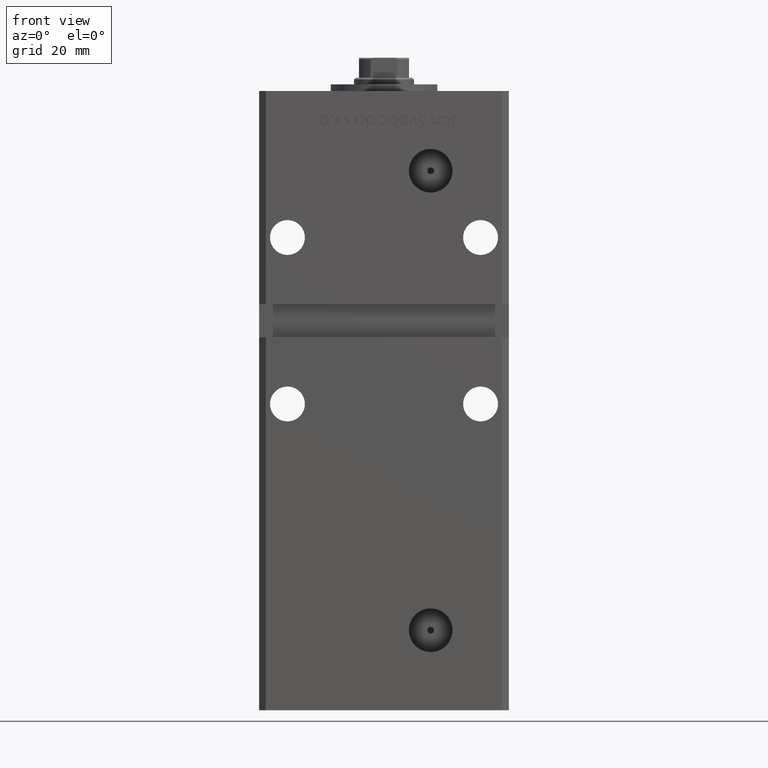
[diagram: clean part render]
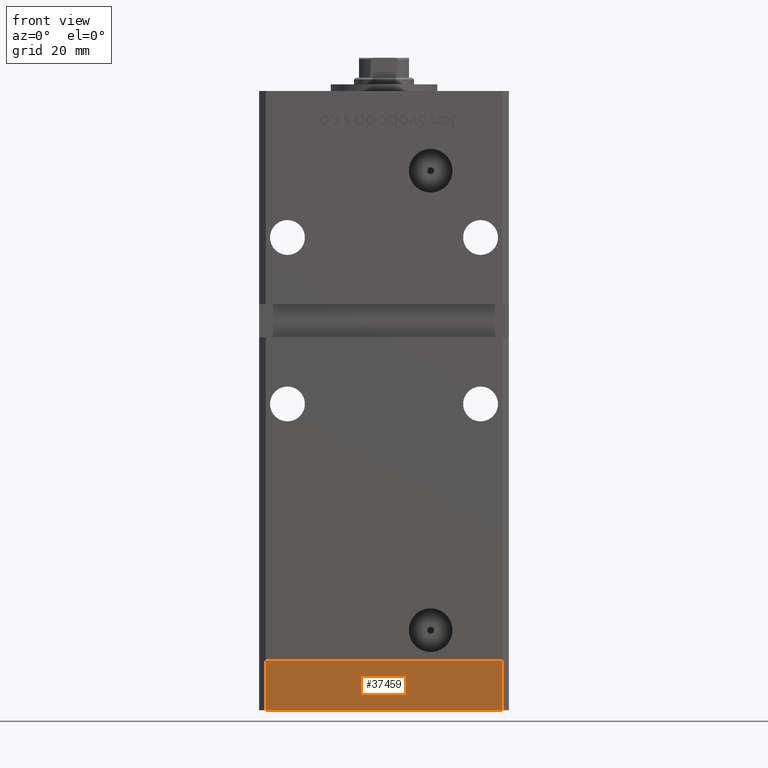
[diagram: same view with one face highlighted and labeled with its STEP entity id]
A machine part, front view. The second image highlights one B-rep face of the part: STEP entity #37459.
In plain terms, the highlighted planar face has unit normal (0, -1, -0).
Its self-contained STEP definition (entity closure, byte-faithful):
#916 = LINE ( 'NONE', #9269, #49912 ) ;
#2996 = EDGE_CURVE ( 'NONE', #18001, #48253, #11283, .T. ) ;
#3023 = CARTESIAN_POINT ( 'NONE',  ( 35.50000000000000711, -32.50000000000000711, 0.000000000000000000 ) ) ;
#4122 = VERTEX_POINT ( 'NONE', #3023 ) ;
#4278 = DIRECTION ( 'NONE',  ( 1.000000000000000000, 9.773090005503140331E-17, 0.000000000000000000 ) ) ;
#6454 = DIRECTION ( 'NONE',  ( 0.000000000000000000, 0.000000000000000000, 1.000000000000000000 ) ) ;
#6476 = EDGE_CURVE ( 'NONE', #48253, #4122, #23952, .T. ) ;
#6502 = PLANE ( 'NONE',  #48820 ) ;
#6762 = DIRECTION ( 'NONE',  ( 1.000000000000000000, 9.773090005503140331E-17, 0.000000000000000000 ) ) ;
#6815 = CARTESIAN_POINT ( 'NONE',  ( 35.50000000000000711, -32.50000000000000711, -15.00000000000000000 ) ) ;
#7544 = FACE_OUTER_BOUND ( 'NONE', #37318, .T. ) ;
#9269 = CARTESIAN_POINT ( 'NONE',  ( -35.49999999999998579, -32.50000000000001421, -15.00000000000000000 ) ) ;
#9792 = DIRECTION ( 'NONE',  ( 0.000000000000000000, 0.000000000000000000, 1.000000000000000000 ) ) ;
#9816 = VERTEX_POINT ( 'NONE', #6815 ) ;
#10218 = VECTOR ( 'NONE', #6454, 1000.000000000000000 ) ;
#10485 = EDGE_CURVE ( 'NONE', #18001, #9816, #916, .T. ) ;
#11283 = LINE ( 'NONE', #19379, #10218 ) ;
#13833 = CARTESIAN_POINT ( 'NONE',  ( 35.50000000000000711, -32.50000000000000711, -15.00000000000000000 ) ) ;
#14261 = EDGE_CURVE ( 'NONE', #9816, #4122, #50643, .T. ) ;
#15280 = CARTESIAN_POINT ( 'NONE',  ( -35.49999999999998579, -32.50000000000001421, -15.00000000000000000 ) ) ;
#16950 = CARTESIAN_POINT ( 'NONE',  ( -35.49999999999998579, -32.50000000000001421, 0.000000000000000000 ) ) ;
#17355 = CARTESIAN_POINT ( 'NONE',  ( -35.49999999999998579, -32.50000000000001421, 0.000000000000000000 ) ) ;
#18001 = VERTEX_POINT ( 'NONE', #15280 ) ;
#19379 = CARTESIAN_POINT ( 'NONE',  ( -35.49999999999998579, -32.50000000000001421, -15.00000000000000000 ) ) ;
#23568 = ORIENTED_EDGE ( 'NONE', *, *, #2996, .F. ) ;
#23952 = LINE ( 'NONE', #16950, #39492 ) ;
#30972 = CARTESIAN_POINT ( 'NONE',  ( -35.49999999999998579, -32.50000000000001421, -15.00000000000000000 ) ) ;
#34257 = DIRECTION ( 'NONE',  ( 1.000000000000000000, 9.773090005503140331E-17, 0.000000000000000000 ) ) ;
#37318 = EDGE_LOOP ( 'NONE', ( #51588, #23568, #52942, #38598 ) ) ;
#37459 = ADVANCED_FACE ( 'NONE', ( #7544 ), #6502, .T. ) ;
#38598 = ORIENTED_EDGE ( 'NONE', *, *, #14261, .T. ) ;
#39294 = DIRECTION ( 'NONE',  ( 9.773090005503140331E-17, -1.000000000000000000, 0.000000000000000000 ) ) ;
#39492 = VECTOR ( 'NONE', #4278, 1000.000000000000000 ) ;
#48253 = VERTEX_POINT ( 'NONE', #17355 ) ;
#48820 = AXIS2_PLACEMENT_3D ( 'NONE', #30972, #39294, #6762 ) ;
#49912 = VECTOR ( 'NONE', #34257, 1000.000000000000000 ) ;
#50643 = LINE ( 'NONE', #13833, #52553 ) ;
#51588 = ORIENTED_EDGE ( 'NONE', *, *, #6476, .F. ) ;
#52553 = VECTOR ( 'NONE', #9792, 1000.000000000000000 ) ;
#52942 = ORIENTED_EDGE ( 'NONE', *, *, #10485, .T. ) ;